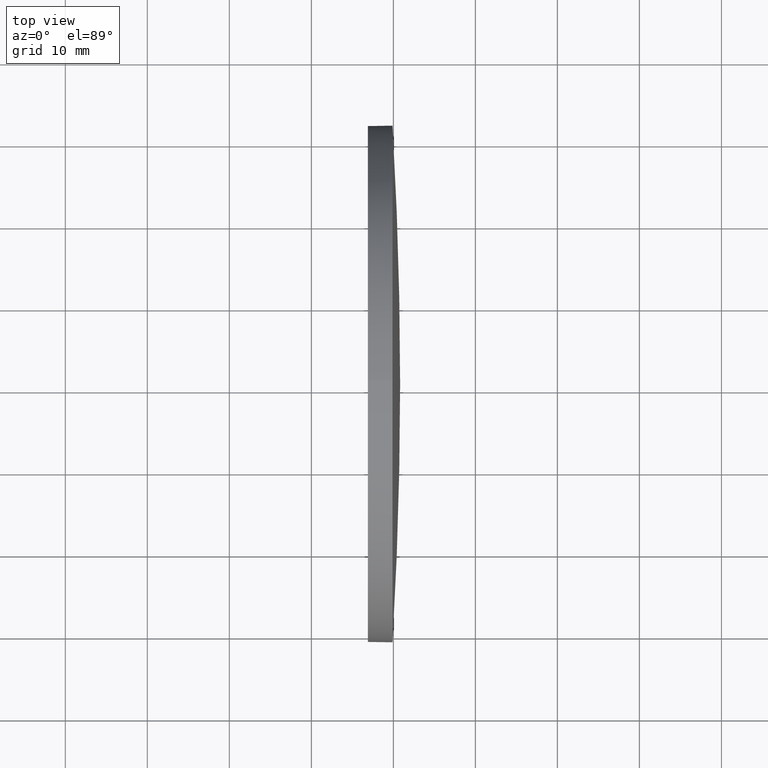
[diagram: clean part render]
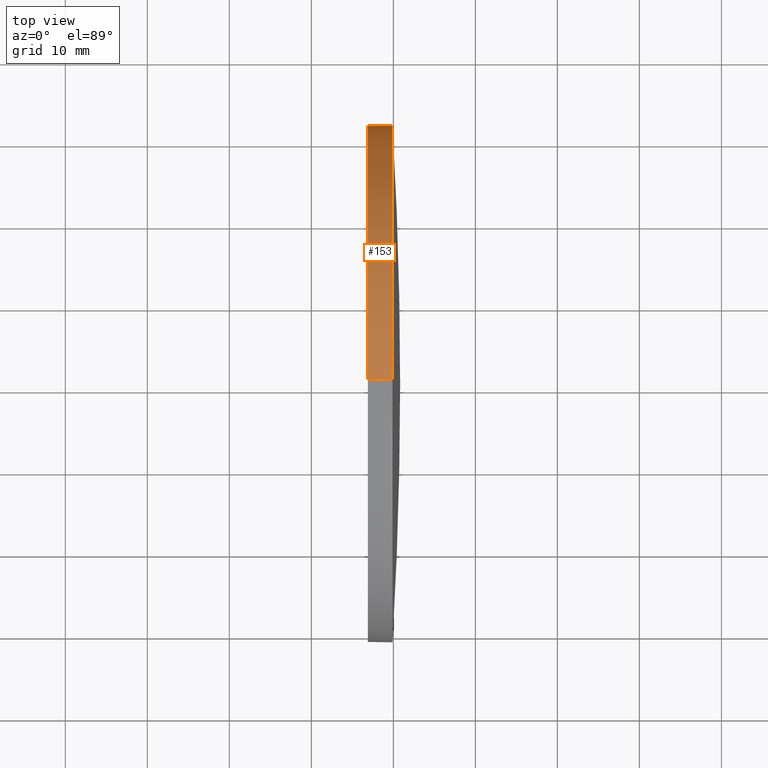
[diagram: same view with one face highlighted and labeled with its STEP entity id]
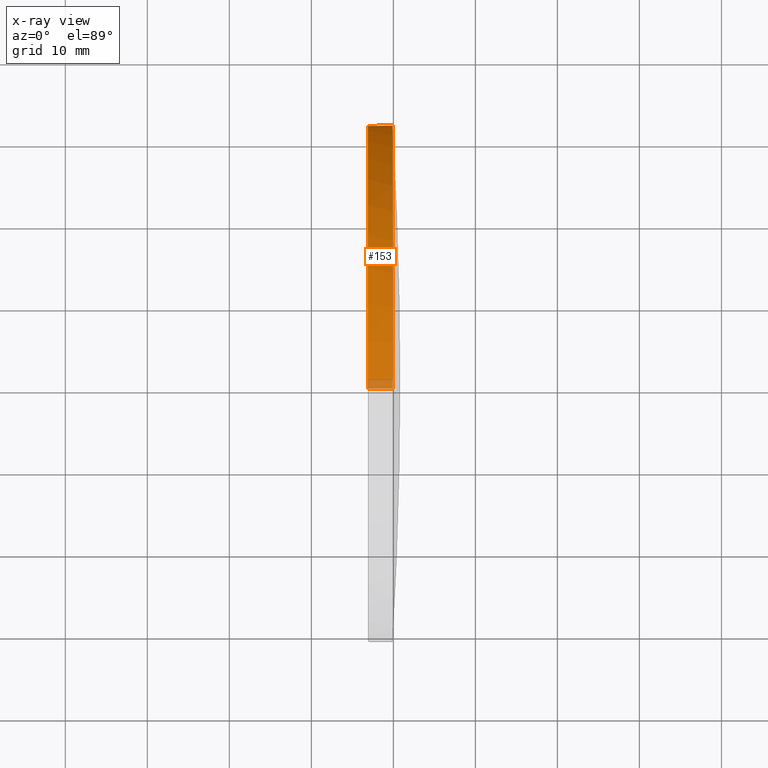
[diagram: x-ray of the same camera — body ghosted, the highlighted face saturated]
A machine part, top view. The second image highlights one B-rep face of the part: STEP entity #153.
The next image is the same camera in x-ray: the body ghosted, the highlighted face saturated — about 3% of this face is hidden behind the body in this view.
In plain terms, the highlighted cylindrical surface (partial cylindrical patch) has radius 31.5 mm, axis along (-1, -0, -0).
Its self-contained STEP definition (entity closure, byte-faithful):
#1 = VECTOR ( 'NONE', #186, 1000.000000000000000 ) ;
#2 = EDGE_CURVE ( 'NONE', #151, #177, #49, .T. ) ;
#17 = DIRECTION ( 'NONE',  ( -1.000000000000000000, -0.0000000000000000000, -0.0000000000000000000 ) ) ;
#19 = CARTESIAN_POINT ( 'NONE',  ( 226.8933010013870400, 130.5185814569561000, 0.0000000000000000000 ) ) ;
#23 = VERTEX_POINT ( 'NONE', #126 ) ;
#25 = CIRCLE ( 'NONE', #156, 31.50000000000000000 ) ;
#27 = ORIENTED_EDGE ( 'NONE', *, *, #158, .T. ) ;
#29 = CIRCLE ( 'NONE', #37, 31.50000000000000000 ) ;
#32 = CARTESIAN_POINT ( 'NONE',  ( 218.1236667371545400, 130.5185814569561000, 31.50000000000000000 ) ) ;
#37 = AXIS2_PLACEMENT_3D ( 'NONE', #19, #161, #52 ) ;
#41 = CARTESIAN_POINT ( 'NONE',  ( 218.1236667371545400, 130.5185814569561000, -31.50000000000000000 ) ) ;
#44 = AXIS2_PLACEMENT_3D ( 'NONE', #51, #71, #178 ) ;
#49 = LINE ( 'NONE', #32, #1 ) ;
#50 = CARTESIAN_POINT ( 'NONE',  ( 229.8933010013870400, 130.5185814569561000, -31.50000000000000000 ) ) ;
#51 = CARTESIAN_POINT ( 'NONE',  ( 229.8933010013870400, 130.5185814569561000, 0.0000000000000000000 ) ) ;
#52 = DIRECTION ( 'NONE',  ( 0.0000000000000000000, 0.0000000000000000000, 1.000000000000000000 ) ) ;
#56 = DIRECTION ( 'NONE',  ( 0.0000000000000000000, 0.0000000000000000000, 1.000000000000000000 ) ) ;
#57 = ORIENTED_EDGE ( 'NONE', *, *, #139, .T. ) ;
#71 = DIRECTION ( 'NONE',  ( -1.000000000000000000, -0.0000000000000000000, -0.0000000000000000000 ) ) ;
#77 = VERTEX_POINT ( 'NONE', #50 ) ;
#85 = DIRECTION ( 'NONE',  ( -1.000000000000000000, -0.0000000000000000000, -0.0000000000000000000 ) ) ;
#89 = CARTESIAN_POINT ( 'NONE',  ( 229.8933010013870400, 130.5185814569561000, 31.50000000000000000 ) ) ;
#96 = CIRCLE ( 'NONE', #44, 31.50000000000000000 ) ;
#97 = FACE_OUTER_BOUND ( 'NONE', #124, .T. ) ;
#98 = CARTESIAN_POINT ( 'NONE',  ( 229.8933010013870400, 130.5185814569561000, 0.0000000000000000000 ) ) ;
#103 = CARTESIAN_POINT ( 'NONE',  ( 218.1236667371545400, 130.5185814569561000, 0.0000000000000000000 ) ) ;
#116 = EDGE_CURVE ( 'NONE', #177, #23, #29, .T. ) ;
#117 = VERTEX_POINT ( 'NONE', #165 ) ;
#119 = DIRECTION ( 'NONE',  ( 0.0000000000000000000, 0.0000000000000000000, 1.000000000000000000 ) ) ;
#120 = ORIENTED_EDGE ( 'NONE', *, *, #2, .F. ) ;
#124 = EDGE_LOOP ( 'NONE', ( #133, #27, #129, #120, #57 ) ) ;
#126 = CARTESIAN_POINT ( 'NONE',  ( 226.8933010013870400, 130.5185814569561000, -31.50000000000000000 ) ) ;
#128 = VECTOR ( 'NONE', #147, 1000.000000000000000 ) ;
#129 = ORIENTED_EDGE ( 'NONE', *, *, #116, .F. ) ;
#133 = ORIENTED_EDGE ( 'NONE', *, *, #138, .T. ) ;
#138 = EDGE_CURVE ( 'NONE', #117, #77, #96, .T. ) ;
#139 = EDGE_CURVE ( 'NONE', #151, #117, #25, .T. ) ;
#147 = DIRECTION ( 'NONE',  ( -1.000000000000000000, -0.0000000000000000000, -0.0000000000000000000 ) ) ;
#151 = VERTEX_POINT ( 'NONE', #89 ) ;
#153 = ADVANCED_FACE ( 'NONE', ( #97 ), #162, .T. ) ;
#156 = AXIS2_PLACEMENT_3D ( 'NONE', #98, #17, #56 ) ;
#158 = EDGE_CURVE ( 'NONE', #77, #23, #175, .T. ) ;
#161 = DIRECTION ( 'NONE',  ( -1.000000000000000000, -0.0000000000000000000, -0.0000000000000000000 ) ) ;
#162 = CYLINDRICAL_SURFACE ( 'NONE', #172, 31.50000000000000000 ) ;
#165 = CARTESIAN_POINT ( 'NONE',  ( 229.8933010013870200, 162.0185814569563500, 3.857637417314076700E-015 ) ) ;
#169 = CARTESIAN_POINT ( 'NONE',  ( 226.8933010013870400, 130.5185814569561000, 31.50000000000000000 ) ) ;
#172 = AXIS2_PLACEMENT_3D ( 'NONE', #103, #85, #119 ) ;
#175 = LINE ( 'NONE', #41, #128 ) ;
#177 = VERTEX_POINT ( 'NONE', #169 ) ;
#178 = DIRECTION ( 'NONE',  ( 0.0000000000000000000, 0.0000000000000000000, 1.000000000000000000 ) ) ;
#186 = DIRECTION ( 'NONE',  ( -1.000000000000000000, -0.0000000000000000000, -0.0000000000000000000 ) ) ;